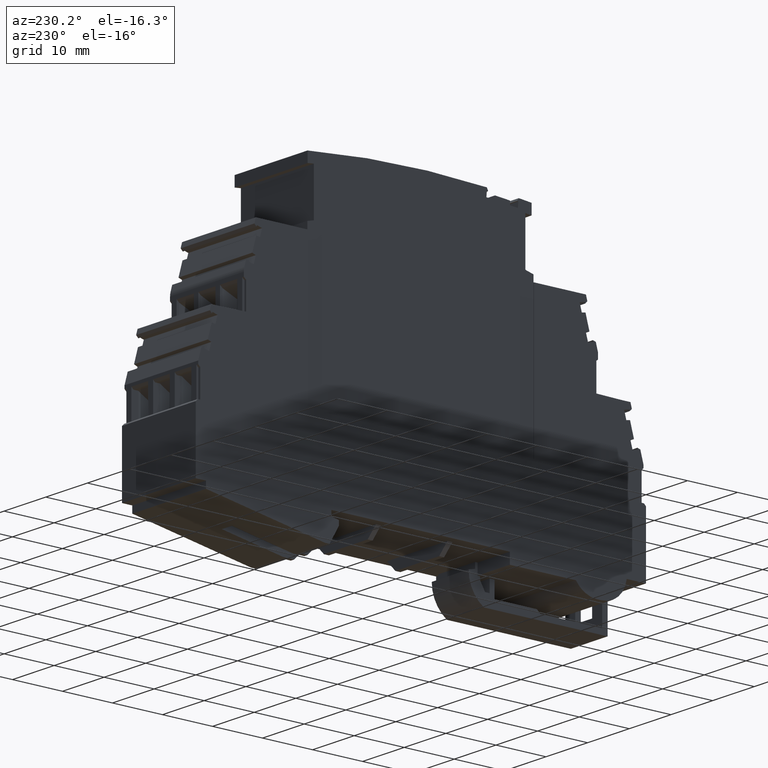
[diagram: clean part render]
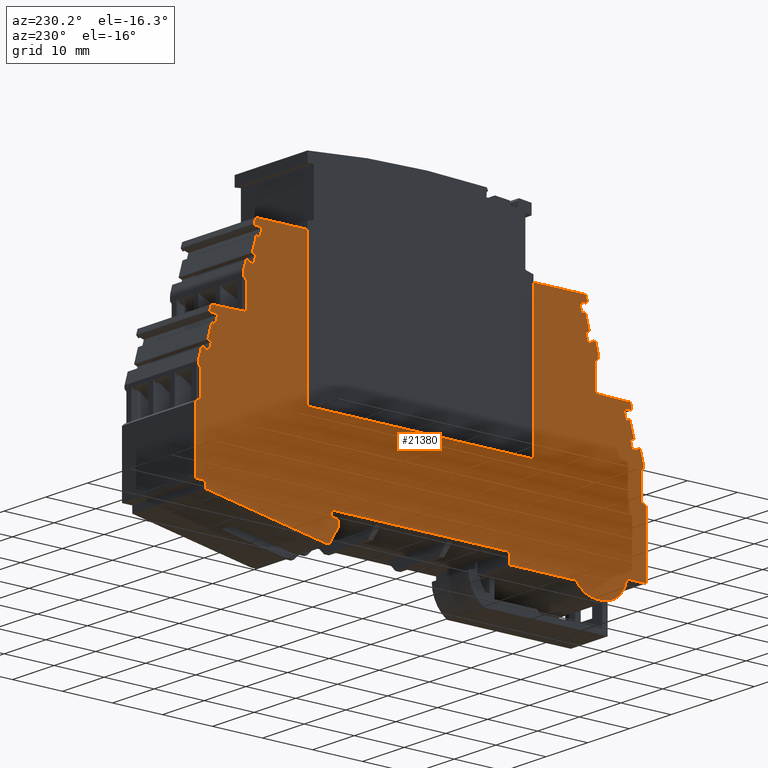
[diagram: same view with one face highlighted and labeled with its STEP entity id]
A machine part, auxiliary view. The second image highlights one B-rep face of the part: STEP entity #21380.
In plain terms, the highlighted planar face has unit normal (-1, 0, 0).
Its self-contained STEP definition (entity closure, byte-faithful):
#8360=CARTESIAN_POINT('',(104.511351260642,10.7062740524428,
-31.7595517602489));
#8370=VERTEX_POINT('',#8360);
#8450=CARTESIAN_POINT('',(100.33552798852,12.9562740524428,
-31.7595517602489));
#8460=VERTEX_POINT('',#8450);
#8490=CARTESIAN_POINT('',(104.511351260642,15.7062740524428,
-31.7595517602489));
#8500=DIRECTION('',(1.22455682824757E-16,-2.60974393670053E-32,-1.));
#8510=DIRECTION('',(-1.,-1.20996962449382E-16,-1.22455682824757E-16));
#8520=AXIS2_PLACEMENT_3D('',#8490,#8500,#8510);
#8530=CIRCLE('',#8520,5.);
#8540=EDGE_CURVE('',#8370,#8460,#8530,.T.);
#8750=CARTESIAN_POINT('',(111.241350105563,43.506269496329,
-31.7595517602489));
#8760=VERTEX_POINT('',#8750);
#8840=CARTESIAN_POINT('',(111.525986202518,42.4658263305209,
-31.7595517602489));
#8850=VERTEX_POINT('',#8840);
#8880=CARTESIAN_POINT('',(129.079958360534,-21.7,-31.7595517602489));
#8890=DIRECTION('',(0.263875685547591,-0.964556697440223,
3.2315451367867E-17));
#8900=VECTOR('',#8890,1.);
#8910=LINE('',#8880,#8900);
#8920=EDGE_CURVE('',#8760,#8850,#8910,.T.);
#9130=CARTESIAN_POINT('',(105.541351260642,10.7062740524428,
-31.7595517602489));
#9140=VERTEX_POINT('',#9130);
#9190=CARTESIAN_POINT('',(129.782702574557,10.7062740524428,
-31.7595517602489));
#9200=DIRECTION('',(1.,1.20996962449382E-16,1.22455682824757E-16));
#9210=VECTOR('',#9200,1.);
#9220=LINE('',#9190,#9210);
#9230=EDGE_CURVE('',#8370,#9140,#9220,.T.);
#9400=CARTESIAN_POINT('',(101.563282574557,39.7054127697336,
-31.7595517602489));
#9410=DIRECTION('',(0.964557418457813,0.26387304996532,
1.18115537300936E-16));
#9420=VECTOR('',#9410,1.);
#9430=LINE('',#9400,#9420);
#9440=CARTESIAN_POINT('',(109.99158318145,42.0111349015703,
-31.7595517602489));
#9450=VERTEX_POINT('',#9440);
#9460=CARTESIAN_POINT('',(111.023659619199,42.2934790650332,
-31.7595517602489));
#9470=VERTEX_POINT('',#9460);
#9480=EDGE_CURVE('',#9450,#9470,#9430,.T.);
#9780=CARTESIAN_POINT('',(117.527582533694,18.519141,-31.7595517602489))
;
#9790=DIRECTION('',(0.263873049970261,-0.964557418456461,
3.23127545131594E-17));
#9800=VECTOR('',#9790,1.);
#9810=LINE('',#9780,#9800);
#9820=CARTESIAN_POINT('',(111.095514261718,42.0308227289654,
-31.7595517602489));
#9830=VERTEX_POINT('',#9820);
#9840=EDGE_CURVE('',#9470,#9830,#9810,.T.);
#10090=CARTESIAN_POINT('',(101.563282574557,38.862590531788,
-31.7595517602489));
#10100=DIRECTION('',(-0.983885037933486,-0.178802215116658,
-1.20482314141207E-16));
#10110=VECTOR('',#10100,1.);
#10120=LINE('',#10090,#10110);
#10130=CARTESIAN_POINT('',(111.15369019086,40.6054629808583,
-31.7595517602489));
#10140=VERTEX_POINT('',#10130);
#10150=CARTESIAN_POINT('',(110.412957701656,40.4708490729602,
-31.7595517602489));
#10160=VERTEX_POINT('',#10150);
#10170=EDGE_CURVE('',#10140,#10160,#10120,.T.);
#10470=CARTESIAN_POINT('',(101.563282574557,33.8713624105116,
-31.7595517602489));
#10480=DIRECTION('',(0.937888934611864,0.346935651573346,
1.14849829901679E-16));
#10490=VECTOR('',#10480,1.);
#10500=LINE('',#10470,#10490);
#10510=CARTESIAN_POINT('',(111.239205702275,37.4505950584347,
-31.7595517602489));
#10520=VERTEX_POINT('',#10510);
#10530=CARTESIAN_POINT('',(111.945309340757,37.7117907254849,
-31.7595517602489));
#10540=VERTEX_POINT('',#10530);
#10550=EDGE_CURVE('',#10520,#10540,#10500,.T.);
#10850=CARTESIAN_POINT('',(117.527582533467,18.519141,-31.7595517602489)
);
#10860=DIRECTION('',(0.263873049960418,-0.964557418459154,
3.23127545119541E-17));
#10870=VECTOR('',#10860,1.);
#10880=LINE('',#10850,#10870);
#10890=CARTESIAN_POINT('',(112.620802017714,36.4553097293561,
-31.7595517602489));
#10900=VERTEX_POINT('',#10890);
#10910=CARTESIAN_POINT('',(112.692656660231,36.1926533932876,
-31.7595517602489));
#10920=VERTEX_POINT('',#10910);
#10930=EDGE_CURVE('',#10900,#10920,#10880,.T.);
#11230=CARTESIAN_POINT('',(101.563282574557,33.1480011745645,
-31.7595517602489));
#11240=DIRECTION('',(-0.964557418457773,-0.263873049965463,
-1.18115537300931E-16));
#11250=VECTOR('',#11240,1.);
#11260=LINE('',#11230,#11250);
#11270=CARTESIAN_POINT('',(111.660580222481,35.9103092298246,
-31.7595517602489));
#11280=VERTEX_POINT('',#11270);
#11290=EDGE_CURVE('',#10920,#11280,#11260,.T.);
#11540=CARTESIAN_POINT('',(118.077057339168,18.519141,-31.7595517602489)
);
#11550=DIRECTION('',(-0.263873049965441,0.964557418457779,
-3.23127545125693E-17));
#11560=VECTOR('',#11550,1.);
#11570=LINE('',#11540,#11560);
#11580=CARTESIAN_POINT('',(113.841351260641,34.0022747303488,
-31.7595517602489));
#11590=VERTEX_POINT('',#11580);
#11600=CARTESIAN_POINT('',(113.212761453003,36.300012078684,
-31.7595517602489));
#11610=VERTEX_POINT('',#11600);
#11620=EDGE_CURVE('',#11590,#11610,#11570,.T.);
#14070=CARTESIAN_POINT('',(110.498921229891,15.056274052443,
-31.7595517602489));
#14080=VERTEX_POINT('',#14070);
#14110=CARTESIAN_POINT('',(101.563282574557,15.056274052443,
-31.7595517602489));
#14120=DIRECTION('',(1.,1.20996962449382E-16,1.22455682824757E-16));
#14130=VECTOR('',#14120,1.);
#14140=LINE('',#14110,#14130);
#14150=CARTESIAN_POINT('',(114.341351239286,15.056274052443,
-31.7595517602489));
#14160=VERTEX_POINT('',#14150);
#14170=EDGE_CURVE('',#14080,#14160,#14140,.T.);
#14380=CARTESIAN_POINT('',(68.7413512464454,25.0562740524434,
-31.7595517602489));
#14390=DIRECTION('',(-1.22455682824757E-16,2.60974393670054E-32,1.));
#14400=DIRECTION('',(1.,1.20996962449382E-16,1.22455682824757E-16));
#14410=AXIS2_PLACEMENT_3D('',#14380,#14390,#14400);
#14420=PLANE('',#14410);
#14430=ORIENTED_EDGE('',*,*,#8920,.F.);
#14440=CARTESIAN_POINT('',(87.8287660574757,18.519141,-31.7595517602489)
);
#14450=DIRECTION('',(0.703394702810296,0.710799473873198,
8.61346786279516E-17));
#14460=VECTOR('',#14450,1.);
#14470=LINE('',#14440,#14460);
#14480=EDGE_CURVE('',#9830,#8850,#14470,.T.);
#14490=ORIENTED_EDGE('',*,*,#14480,.T.);
#14500=ORIENTED_EDGE('',*,*,#9840,.T.);
#14510=ORIENTED_EDGE('',*,*,#9480,.T.);
#14520=CARTESIAN_POINT('',(116.418265473194,18.519141,-31.7595517602489)
);
#14530=DIRECTION('',(-0.263873049965295,0.964557418457819,
-3.23127545125514E-17));
#14540=VECTOR('',#14530,1.);
#14550=LINE('',#14520,#14540);
#14560=EDGE_CURVE('',#10160,#9450,#14550,.T.);
#14570=ORIENTED_EDGE('',*,*,#14560,.T.);
#14580=ORIENTED_EDGE('',*,*,#10170,.T.);
#14590=CARTESIAN_POINT('',(117.19582416037,18.519141,-31.7595517602489))
;
#14600=DIRECTION('',(-0.263873049965391,0.964557418457793,
-3.23127545125631E-17));
#14610=VECTOR('',#14600,1.);
#14620=LINE('',#14590,#14610);
#14630=EDGE_CURVE('',#10540,#10140,#14620,.T.);
#14640=ORIENTED_EDGE('',*,*,#14630,.T.);
#14650=ORIENTED_EDGE('',*,*,#10550,.T.);
#14660=CARTESIAN_POINT('',(116.418265473194,18.519141,-31.7595517602489)
);
#14670=DIRECTION('',(-0.263873049965258,0.96455741845783,
-3.23127545125469E-17));
#14680=VECTOR('',#14670,1.);
#14690=LINE('',#14660,#14680);
#14700=EDGE_CURVE('',#11280,#10520,#14690,.T.);
#14710=ORIENTED_EDGE('',*,*,#14700,.T.);
#14720=ORIENTED_EDGE('',*,*,#11290,.T.);
#14730=ORIENTED_EDGE('',*,*,#10930,.T.);
#14740=CARTESIAN_POINT('',(101.563282574557,39.3561956506128,
-31.7595517602489));
#14750=DIRECTION('',(-0.967267752775637,0.25375794458572,
-1.18447433140509E-16));
#14760=VECTOR('',#14750,1.);
#14770=LINE('',#14740,#14760);
#14780=EDGE_CURVE('',#11610,#10900,#14770,.T.);
#14790=ORIENTED_EDGE('',*,*,#14780,.T.);
#14800=ORIENTED_EDGE('',*,*,#11620,.T.);
#14810=CARTESIAN_POINT('',(113.841351260641,18.519141,-31.7595517602489)
);
#14820=DIRECTION('',(1.20996962449382E-16,-1.,4.09142050234659E-32));
#14830=VECTOR('',#14820,1.);
#14840=LINE('',#14810,#14830);
#14850=CARTESIAN_POINT('',(113.841351260641,33.4062740524438,
-31.7595517602489));
#14860=VERTEX_POINT('',#14850);
#14870=EDGE_CURVE('',#11590,#14860,#14840,.T.);
#14880=ORIENTED_EDGE('',*,*,#14870,.F.);
#14890=CARTESIAN_POINT('',(101.563282574557,21.1282053663593,
-31.7595517602489));
#14900=DIRECTION('',(0.707106781186552,0.707106781186543,
8.6589243720215E-17));
#14910=VECTOR('',#14900,1.);
#14920=LINE('',#14890,#14910);
#14930=CARTESIAN_POINT('',(113.441351276601,33.0062740684037,
-31.7595517602489));
#14940=VERTEX_POINT('',#14930);
#14950=EDGE_CURVE('',#14940,#14860,#14920,.T.);
#14960=ORIENTED_EDGE('',*,*,#14950,.T.);
#14970=CARTESIAN_POINT('',(113.441351276601,18.519141,-31.7595517602489)
);
#14980=DIRECTION('',(1.20996962449382E-16,-1.,4.09142050234659E-32));
#14990=VECTOR('',#14980,1.);
#15000=LINE('',#14970,#14990);
#15010=CARTESIAN_POINT('',(113.441351276601,27.8062740524438,
-31.7595517602489));
#15020=VERTEX_POINT('',#15010);
#15030=EDGE_CURVE('',#14940,#15020,#15000,.T.);
#15040=ORIENTED_EDGE('',*,*,#15030,.F.);
#15050=CARTESIAN_POINT('',(101.563282574557,27.8062740524438,
-31.7595517602489));
#15060=DIRECTION('',(1.,1.20996962449382E-16,1.22455682824757E-16));
#15070=VECTOR('',#15060,1.);
#15080=LINE('',#15050,#15070);
#15090=CARTESIAN_POINT('',(113.941351260642,27.8062740524438,
-31.7595517602489));
#15100=VERTEX_POINT('',#15090);
#15110=EDGE_CURVE('',#15020,#15100,#15080,.T.);
#15120=ORIENTED_EDGE('',*,*,#15110,.F.);
#15130=CARTESIAN_POINT('',(101.563282574557,40.1843427385291,
-31.7595517602489));
#15140=DIRECTION('',(-0.707106781186552,0.707106781186543,
-8.65892437202151E-17));
#15150=VECTOR('',#15140,1.);
#15160=LINE('',#15130,#15150);
#15170=CARTESIAN_POINT('',(114.341351239286,27.4062740737997,
-31.7595517602489));
#15180=VERTEX_POINT('',#15170);
#15190=EDGE_CURVE('',#15180,#15100,#15160,.T.);
#15200=ORIENTED_EDGE('',*,*,#15190,.T.);
#15210=CARTESIAN_POINT('',(114.341351239286,18.519141,-31.7595517602489)
);
#15220=DIRECTION('',(-1.20996962449382E-16,1.,-4.09142050234659E-32));
#15230=VECTOR('',#15220,1.);
#15240=LINE('',#15210,#15230);
#15250=EDGE_CURVE('',#14160,#15180,#15240,.T.);
#15260=ORIENTED_EDGE('',*,*,#15250,.T.);
#15270=ORIENTED_EDGE('',*,*,#14170,.T.);
#15280=CARTESIAN_POINT('',(105.541351260642,15.7062740524428,
-31.7595517602489));
#15290=DIRECTION('',(1.22455682824757E-16,-2.60974393670053E-32,-1.));
#15300=DIRECTION('',(-1.,-1.20996962449382E-16,-1.22455682824757E-16));
#15310=AXIS2_PLACEMENT_3D('',#15280,#15290,#15300);
#15320=CIRCLE('',#15310,5.);
#15330=EDGE_CURVE('',#14080,#9140,#15320,.T.);
#15340=ORIENTED_EDGE('',*,*,#15330,.F.);
#15350=ORIENTED_EDGE('',*,*,#9230,.T.);
#15360=ORIENTED_EDGE('',*,*,#8540,.F.);
#15370=CARTESIAN_POINT('',(129.782702574557,12.9562740524428,
-31.7595517602489));
#15380=DIRECTION('',(1.,5.43206665043069E-17,1.22455682824757E-16));
#15390=VECTOR('',#15380,1.);
#15400=LINE('',#15370,#15390);
#15410=CARTESIAN_POINT('',(87.1413512606422,12.9562740524428,
-31.7595517602489));
#15420=VERTEX_POINT('',#15410);
#15430=EDGE_CURVE('',#15420,#8460,#15400,.T.);
#15440=ORIENTED_EDGE('',*,*,#15430,.T.);
#15450=CARTESIAN_POINT('',(87.1413512606422,-21.7,-31.7595517602489));
#15460=DIRECTION('',(-3.19601455867452E-48,-1.,2.60974393670053E-32));
#15470=VECTOR('',#15460,1.);
#15480=LINE('',#15450,#15470);
#15490=CARTESIAN_POINT('',(87.1413512606422,15.0562740524428,
-31.7595517602489));
#15500=VERTEX_POINT('',#15490);
#15510=EDGE_CURVE('',#15500,#15420,#15480,.T.);
#15520=ORIENTED_EDGE('',*,*,#15510,.T.);
#15530=CARTESIAN_POINT('',(129.782702574557,15.0562740524428,
-31.7595517602489));
#15540=DIRECTION('',(-1.,-1.20996962449382E-16,-1.22455682824757E-16));
#15550=VECTOR('',#15540,1.);
#15560=LINE('',#15530,#15550);
#15570=CARTESIAN_POINT('',(51.4413512606413,15.0562740524428,
-31.7595517602489));
#15580=VERTEX_POINT('',#15570);
#15590=EDGE_CURVE('',#15500,#15580,#15560,.T.);
#15600=ORIENTED_EDGE('',*,*,#15590,.F.);
#15610=CARTESIAN_POINT('',(51.4413512606413,-21.7,-31.7595517602489));
#15620=DIRECTION('',(-1.20996962449382E-16,1.,-3.94697575651755E-32));
#15630=VECTOR('',#15620,1.);
#15640=LINE('',#15610,#15630);
#15650=CARTESIAN_POINT('',(51.4413512606413,13.9562740524427,
-31.7595517602489));
#15660=VERTEX_POINT('',#15650);
#15670=EDGE_CURVE('',#15660,#15580,#15640,.T.);
#15680=ORIENTED_EDGE('',*,*,#15670,.T.);
#15690=CARTESIAN_POINT('',(101.563282574557,13.9562740524427,
-31.7595517602489));
#15700=DIRECTION('',(-1.,-1.20996962449382E-16,-1.22455682824757E-16));
#15710=VECTOR('',#15700,1.);
#15720=LINE('',#15690,#15710);
#15730=CARTESIAN_POINT('',(51.7413512606414,13.9562740524427,
-31.7595517602489));
#15740=VERTEX_POINT('',#15730);
#15750=EDGE_CURVE('',#15740,#15660,#15720,.T.);
#15760=ORIENTED_EDGE('',*,*,#15750,.T.);
#15770=CARTESIAN_POINT('',(101.563282574557,3.99999656791273,
-31.7595517602489));
#15780=DIRECTION('',(0.980611355912286,-0.195962671587904,
1.20081433173949E-16));
#15790=VECTOR('',#15780,1.);
#15800=LINE('',#15770,#15790);
#15810=CARTESIAN_POINT('',(52.9413512606414,13.7164693586793,
-31.7595517602489));
#15820=VERTEX_POINT('',#15810);
#15830=EDGE_CURVE('',#15740,#15820,#15800,.T.);
#15840=ORIENTED_EDGE('',*,*,#15830,.F.);
#15850=CARTESIAN_POINT('',(52.9413512606414,-21.7,-31.7595517602489));
#15860=DIRECTION('',(-1.95988511586443E-16,-1.,6.50232949757527E-34));
#15870=VECTOR('',#15860,1.);
#15880=LINE('',#15850,#15870);
#15890=CARTESIAN_POINT('',(52.9413512606414,12.7826553735047,
-31.7595517602489));
#15900=VERTEX_POINT('',#15890);
#15910=EDGE_CURVE('',#15820,#15900,#15880,.T.);
#15920=ORIENTED_EDGE('',*,*,#15910,.F.);
#15930=CARTESIAN_POINT('',(33.1849960575903,-21.7,-31.759551760249));
#15940=DIRECTION('',(-0.497124633005974,-0.867679145340417,
-6.08802090588069E-17));
#15950=VECTOR('',#15940,1.);
#15960=LINE('',#15930,#15950);
#15970=CARTESIAN_POINT('',(51.0928411993087,9.55627405244274,
-31.7595517602489));
#15980=VERTEX_POINT('',#15970);
#15990=EDGE_CURVE('',#15900,#15980,#15960,.T.);
#16000=ORIENTED_EDGE('',*,*,#15990,.F.);
#16010=CARTESIAN_POINT('',(129.782702574557,9.55627405244275,
-31.7595517602489));
#16020=DIRECTION('',(-1.,-1.20996962449382E-16,-1.22455682824757E-16));
#16030=VECTOR('',#16020,1.);
#16040=LINE('',#16010,#16030);
#16050=CARTESIAN_POINT('',(50.1482739900682,9.55627405244274,
-31.7595517602489));
#16060=VERTEX_POINT('',#16050);
#16070=EDGE_CURVE('',#15980,#16060,#16040,.T.);
#16080=ORIENTED_EDGE('',*,*,#16070,.F.);
#16090=CARTESIAN_POINT('',(129.782702574557,-4.48542430030398,
-31.7595517602489));
#16100=DIRECTION('',(-0.984807753012208,0.17364817766693,
-1.2060416625019E-16));
#16110=VECTOR('',#16100,1.);
#16120=LINE('',#16090,#16110);
#16130=CARTESIAN_POINT('',(26.3913512606413,13.7452605082469,
-31.759551760249));
#16140=VERTEX_POINT('',#16130);
#16150=EDGE_CURVE('',#16060,#16140,#16120,.T.);
#16160=ORIENTED_EDGE('',*,*,#16150,.F.);
#16170=CARTESIAN_POINT('',(26.3913512606413,9.06039299999994,
-31.759551760249));
#16180=DIRECTION('',(2.41993924898765E-16,-1.,5.57309706799265E-32));
#16190=VECTOR('',#16180,1.);
#16200=LINE('',#16170,#16190);
#16210=CARTESIAN_POINT('',(26.3913512606413,15.056274052443,
-31.759551760249));
#16220=VERTEX_POINT('',#16210);
#16230=EDGE_CURVE('',#16220,#16140,#16200,.T.);
#16240=ORIENTED_EDGE('',*,*,#16230,.T.);
#16250=CARTESIAN_POINT('',(101.563282574557,15.056274052443,
-31.7595517602489));
#16260=DIRECTION('',(1.,1.20996962449382E-16,1.22455682824757E-16));
#16270=VECTOR('',#16260,1.);
#16280=LINE('',#16250,#16270);
#16290=CARTESIAN_POINT('',(24.3413513139145,15.056274052443,
-31.759551760249));
#16300=VERTEX_POINT('',#16290);
#16310=EDGE_CURVE('',#16300,#16220,#16280,.T.);
#16320=ORIENTED_EDGE('',*,*,#16310,.T.);
#16330=CARTESIAN_POINT('',(24.3413513139145,18.519141,-31.759551760249))
;
#16340=DIRECTION('',(1.20996962449382E-16,-1.,4.09142050234659E-32));
#16350=VECTOR('',#16340,1.);
#16360=LINE('',#16330,#16350);
#16370=CARTESIAN_POINT('',(24.3413513139145,27.4062741057177,
-31.759551760249));
#16380=VERTEX_POINT('',#16370);
#16390=EDGE_CURVE('',#16380,#16300,#16360,.T.);
#16400=ORIENTED_EDGE('',*,*,#16390,.T.);
#16410=CARTESIAN_POINT('',(101.563282574557,104.628205366359,
-31.7595517602489));
#16420=DIRECTION('',(-0.707106781186552,-0.707106781186543,
-8.6589243720215E-17));
#16430=VECTOR('',#16420,1.);
#16440=LINE('',#16410,#16430);
#16450=CARTESIAN_POINT('',(24.7413512606405,27.8062740524438,
-31.759551760249));
#16460=VERTEX_POINT('',#16450);
#16470=EDGE_CURVE('',#16460,#16380,#16440,.T.);
#16480=ORIENTED_EDGE('',*,*,#16470,.T.);
#16490=CARTESIAN_POINT('',(129.782702574557,27.8062740524438,
-31.7595517602489));
#16500=DIRECTION('',(1.,1.20996962449382E-16,1.22455682824757E-16));
#16510=VECTOR('',#16500,1.);
#16520=LINE('',#16490,#16510);
#16530=CARTESIAN_POINT('',(25.2413512765996,27.8062740524438,
-31.759551760249));
#16540=VERTEX_POINT('',#16530);
#16550=EDGE_CURVE('',#16460,#16540,#16520,.T.);
#16560=ORIENTED_EDGE('',*,*,#16550,.F.);
#16570=CARTESIAN_POINT('',(25.2413512765996,-21.7,-31.759551760249));
#16580=DIRECTION('',(-2.46519032881566E-32,-1.,1.44553607884872E-33));
#16590=VECTOR('',#16580,1.);
#16600=LINE('',#16570,#16590);
#16610=CARTESIAN_POINT('',(25.2413512765996,33.0062740684037,
-31.759551760249));
#16620=VERTEX_POINT('',#16610);
#16630=EDGE_CURVE('',#16620,#16540,#16600,.T.);
#16640=ORIENTED_EDGE('',*,*,#16630,.T.);
#16650=CARTESIAN_POINT('',(8.89999997864405,49.347625366359,
-31.759551760249));
#16660=DIRECTION('',(0.707106781186552,-0.707106781186543,
3.10780924889573E-17));
#16670=VECTOR('',#16660,1.);
#16680=LINE('',#16650,#16670);
#16690=CARTESIAN_POINT('',(24.8413512606413,33.4062740684029,
-31.759551760249));
#16700=VERTEX_POINT('',#16690);
#16710=EDGE_CURVE('',#16700,#16620,#16680,.T.);
#16720=ORIENTED_EDGE('',*,*,#16710,.T.);
#16730=CARTESIAN_POINT('',(24.8413512606413,18.519141,-31.759551760249))
;
#16740=DIRECTION('',(-1.20996962449382E-16,1.,-4.09142050234659E-32));
#16750=VECTOR('',#16740,1.);
#16760=LINE('',#16730,#16750);
#16770=CARTESIAN_POINT('',(24.8413512606413,34.0022747303481,
-31.759551760249));
#16780=VERTEX_POINT('',#16770);
#16790=EDGE_CURVE('',#16700,#16780,#16760,.T.);
#16800=ORIENTED_EDGE('',*,*,#16790,.F.);
#16810=CARTESIAN_POINT('',(20.6056451821145,18.519141,-31.759551760249))
;
#16820=DIRECTION('',(-0.263873049965441,-0.964557418457779,
-3.23127545125692E-17));
#16830=VECTOR('',#16820,1.);
#16840=LINE('',#16810,#16830);
#16850=CARTESIAN_POINT('',(25.4699410682801,36.3000120786842,
-31.759551760249));
#16860=VERTEX_POINT('',#16850);
#16870=EDGE_CURVE('',#16860,#16780,#16840,.T.);
#16880=ORIENTED_EDGE('',*,*,#16870,.T.);
#16890=CARTESIAN_POINT('',(101.563282574557,56.2627265203502,
-31.7595517602489));
#16900=DIRECTION('',(-0.967267752775637,-0.25375794458572,
-1.18447433140509E-16));
#16910=VECTOR('',#16900,1.);
#16920=LINE('',#16890,#16910);
#16930=CARTESIAN_POINT('',(26.0619005035683,36.4553097293563,
-31.759551760249));
#16940=VERTEX_POINT('',#16930);
#16950=EDGE_CURVE('',#16940,#16860,#16920,.T.);
#16960=ORIENTED_EDGE('',*,*,#16950,.T.);
#16970=CARTESIAN_POINT('',(21.1551199878159,18.519141,-31.759551760249))
;
#16980=DIRECTION('',(0.263873049960418,0.964557418459154,
3.23127545119541E-17));
#16990=VECTOR('',#16980,1.);
#17000=LINE('',#16970,#16990);
#17010=CARTESIAN_POINT('',(25.990045861052,36.1926533932877,
-31.759551760249));
#17020=VERTEX_POINT('',#17010);
#17030=EDGE_CURVE('',#17020,#16940,#17000,.T.);
#17040=ORIENTED_EDGE('',*,*,#17030,.T.);
#17050=CARTESIAN_POINT('',(101.563282574557,15.5181553429392,
-31.7595517602489));
#17060=DIRECTION('',(-0.964557418457773,0.263873049965463,
-1.18115537300931E-16));
#17070=VECTOR('',#17060,1.);
#17080=LINE('',#17050,#17070);
#17090=CARTESIAN_POINT('',(27.022122298802,35.9103092298245,
-31.759551760249));
#17100=VERTEX_POINT('',#17090);
#17110=EDGE_CURVE('',#17100,#17020,#17080,.T.);
#17120=ORIENTED_EDGE('',*,*,#17110,.T.);
#17130=CARTESIAN_POINT('',(22.264437048089,18.519141,-31.759551760249));
#17140=DIRECTION('',(-0.263873049965258,-0.96455741845783,
-3.23127545125468E-17));
#17150=VECTOR('',#17140,1.);
#17160=LINE('',#17130,#17150);
#17170=CARTESIAN_POINT('',(27.4434968190078,37.4505950584344,
-31.759551760249));
#17180=VERTEX_POINT('',#17170);
#17190=EDGE_CURVE('',#17180,#17100,#17160,.T.);
#17200=ORIENTED_EDGE('',*,*,#17190,.T.);
#17210=CARTESIAN_POINT('',(101.563282574557,10.0328537709548,
-31.7595517602489));
#17220=DIRECTION('',(0.937888934611864,-0.346935651573346,
1.14849829901679E-16));
#17230=VECTOR('',#17220,1.);
#17240=LINE('',#17210,#17230);
#17250=CARTESIAN_POINT('',(26.7373931805261,37.7117907254846,
-31.759551760249));
#17260=VERTEX_POINT('',#17250);
#17270=EDGE_CURVE('',#17260,#17180,#17240,.T.);
#17280=ORIENTED_EDGE('',*,*,#17270,.T.);
#17290=CARTESIAN_POINT('',(21.4868783609122,18.519141,-31.759551760249))
;
#17300=DIRECTION('',(-0.263873049965391,-0.964557418457793,
-3.23127545125631E-17));
#17310=VECTOR('',#17300,1.);
#17320=LINE('',#17290,#17310);
#17330=CARTESIAN_POINT('',(27.5290123304223,40.6054629808583,
-31.759551760249));
#17340=VERTEX_POINT('',#17330);
#17350=EDGE_CURVE('',#17340,#17260,#17320,.T.);
#17360=ORIENTED_EDGE('',*,*,#17350,.T.);
#17370=CARTESIAN_POINT('',(101.563282574557,27.1511558170864,
-31.7595517602489));
#17380=DIRECTION('',(-0.983885037933486,0.178802215116658,
-1.20482314141207E-16));
#17390=VECTOR('',#17380,1.);
#17400=LINE('',#17370,#17390);
#17410=CARTESIAN_POINT('',(28.2697448196271,40.4708490729602,
-31.759551760249));
#17420=VERTEX_POINT('',#17410);
#17430=EDGE_CURVE('',#17420,#17340,#17400,.T.);
#17440=ORIENTED_EDGE('',*,*,#17430,.T.);
#17450=CARTESIAN_POINT('',(22.2644370480887,18.519141,-31.759551760249))
;
#17460=DIRECTION('',(-0.263873049965295,-0.964557418457819,
-3.23127545125513E-17));
#17470=VECTOR('',#17460,1.);
#17480=LINE('',#17450,#17470);
#17490=CARTESIAN_POINT('',(28.6911193398329,42.0111349015703,
-31.759551760249));
#17500=VERTEX_POINT('',#17490);
#17510=EDGE_CURVE('',#17500,#17420,#17480,.T.);
#17520=ORIENTED_EDGE('',*,*,#17510,.T.);
#17530=CARTESIAN_POINT('',(101.563282574557,22.0755669381186,
-31.7595517602489));
#17540=DIRECTION('',(0.964557418457813,-0.26387304996532,
1.18115537300936E-16));
#17550=VECTOR('',#17540,1.);
#17560=LINE('',#17530,#17550);
#17570=CARTESIAN_POINT('',(27.6590429020832,42.2934790650332,
-31.759551760249));
#17580=VERTEX_POINT('',#17570);
#17590=EDGE_CURVE('',#17580,#17500,#17560,.T.);
#17600=ORIENTED_EDGE('',*,*,#17590,.T.);
#17610=CARTESIAN_POINT('',(21.155119987589,18.519141,-31.759551760249));
#17620=DIRECTION('',(0.26387304997026,0.964557418456461,
3.23127545131593E-17));
#17630=VECTOR('',#17620,1.);
#17640=LINE('',#17610,#17630);
#17650=CARTESIAN_POINT('',(27.5871882595643,42.0308227289655,
-31.759551760249));
#17660=VERTEX_POINT('',#17650);
#17670=EDGE_CURVE('',#17660,#17580,#17640,.T.);
#17680=ORIENTED_EDGE('',*,*,#17670,.T.);
#17690=CARTESIAN_POINT('',(50.853936463807,18.519141,-31.7595517602489))
;
#17700=DIRECTION('',(0.703394702810296,-0.710799473873198,
8.61346786279516E-17));
#17710=VECTOR('',#17700,1.);
#17720=LINE('',#17690,#17710);
#17730=CARTESIAN_POINT('',(27.156716305533,42.4658263438921,
-31.759551760249));
#17740=VERTEX_POINT('',#17730);
#17750=EDGE_CURVE('',#17740,#17660,#17720,.T.);
#17760=ORIENTED_EDGE('',*,*,#17750,.T.);
#17770=CARTESIAN_POINT('',(9.60273927867974,-21.7,-31.759551760249));
#17780=DIRECTION('',(-0.263875753589783,-0.964556678825783,
-3.23154597006323E-17));
#17790=VECTOR('',#17780,1.);
#17800=LINE('',#17770,#17790);
#17810=CARTESIAN_POINT('',(27.4413524755615,43.5062694884454,
-31.759551760249));
#17820=VERTEX_POINT('',#17810);
#17830=EDGE_CURVE('',#17820,#17740,#17800,.T.);
#17840=ORIENTED_EDGE('',*,*,#17830,.T.);
#17850=CARTESIAN_POINT('',(129.782702574557,43.5062694884454,
-31.7595517602489));
#17860=DIRECTION('',(1.,1.18859577327523E-16,1.22455682824757E-16));
#17870=VECTOR('',#17860,1.);
#17880=LINE('',#17850,#17870);
#17890=CARTESIAN_POINT('',(29.3413508774288,43.5062694884454,
-31.759551760249));
#17900=VERTEX_POINT('',#17890);
#17910=EDGE_CURVE('',#17820,#17900,#17880,.T.);
#17920=ORIENTED_EDGE('',*,*,#17910,.F.);
#17930=CARTESIAN_POINT('',(129.782702574557,45.4899600439842,
-31.7595517602489));
#17940=DIRECTION('',(0.999805030924262,0.019745889155346,
1.22440803089282E-16));
#17950=VECTOR('',#17940,1.);
#17960=LINE('',#17930,#17950);
#17970=CARTESIAN_POINT('',(34.4047083371115,43.6062694805042,
-31.759551760249));
#17980=VERTEX_POINT('',#17970);
#17990=EDGE_CURVE('',#17900,#17980,#17960,.T.);
#18000=ORIENTED_EDGE('',*,*,#17990,.F.);
#18010=CARTESIAN_POINT('',(34.4047083371115,-21.7093639929982,
-31.759551760249));
#18020=DIRECTION('',(-2.46519032881566E-32,-1.,2.60974393670053E-32));
#18030=VECTOR('',#18020,1.);
#18040=LINE('',#18010,#18030);
#18050=CARTESIAN_POINT('',(34.4047083371115,48.6969054875637,
-31.759551760249));
#18060=VERTEX_POINT('',#18050);
#18070=EDGE_CURVE('',#18060,#17980,#18040,.T.);
#18080=ORIENTED_EDGE('',*,*,#18070,.T.);
#18090=CARTESIAN_POINT('',(8.89999994672604,70.7144821659877,
-31.759551760249));
#18100=DIRECTION('',(0.756958310160381,-0.653463171631838,
9.42711989367665E-18));
#18110=VECTOR('',#18100,1.);
#18120=LINE('',#18090,#18110);
#18130=CARTESIAN_POINT('',(33.9413512606414,49.0969100594456,
-31.759551760249));
#18140=VERTEX_POINT('',#18130);
#18150=EDGE_CURVE('',#18140,#18060,#18120,.T.);
#18160=ORIENTED_EDGE('',*,*,#18150,.T.);
#18170=CARTESIAN_POINT('',(8.89999994672604,49.0969100594456,
-31.759551760249));
#18180=DIRECTION('',(-1.,2.46519032881566E-32,-1.22455682824757E-16));
#18190=VECTOR('',#18180,1.);
#18200=LINE('',#18170,#18190);
#18210=CARTESIAN_POINT('',(33.9521931613098,49.0969100594456,
-31.7595517602489));
#18220=VERTEX_POINT('',#18210);
#18230=EDGE_CURVE('',#18220,#18140,#18200,.T.);
#18240=ORIENTED_EDGE('',*,*,#18230,.T.);
#18250=CARTESIAN_POINT('',(101.563282574557,-9.26938647477359,
-31.7595517602489));
#18260=DIRECTION('',(-0.756961995471646,0.65345890261866,
-9.26942980278708E-17));
#18270=VECTOR('',#18260,1.);
#18280=LINE('',#18250,#18270);
#18290=CARTESIAN_POINT('',(33.9413512606414,49.1062694943387,
-31.7595517602489));
#18300=VERTEX_POINT('',#18290);
#18310=EDGE_CURVE('',#18220,#18300,#18280,.T.);
#18320=ORIENTED_EDGE('',*,*,#18310,.F.);
#18330=CARTESIAN_POINT('',(33.9413512606414,18.519141,-31.759551760249))
;
#18340=DIRECTION('',(-1.20996962449382E-16,1.,-4.09142050234659E-32));
#18350=VECTOR('',#18340,1.);
#18360=LINE('',#18330,#18350);
#18370=CARTESIAN_POINT('',(33.9413512606414,49.8804012255559,
-31.759551760249));
#18380=VERTEX_POINT('',#18370);
#18390=EDGE_CURVE('',#18300,#18380,#18360,.T.);
#18400=ORIENTED_EDGE('',*,*,#18390,.F.);
#18410=CARTESIAN_POINT('',(36.9413512606414,49.8804012255559,
-31.759551760249));
#18420=DIRECTION('',(1.22455682824757E-16,-2.60974393670053E-32,-1.));
#18430=DIRECTION('',(-1.,-1.20996962449382E-16,-1.22455682824757E-16));
#18440=AXIS2_PLACEMENT_3D('',#18410,#18420,#18430);
#18450=CIRCLE('',#18440,3.);
#18460=CARTESIAN_POINT('',(34.047679005268,50.6720203754521,
-31.759551760249));
#18470=VERTEX_POINT('',#18460);
#18480=EDGE_CURVE('',#18380,#18470,#18450,.T.);
#18490=ORIENTED_EDGE('',*,*,#18480,.F.);
#18500=CARTESIAN_POINT('',(25.2516465621845,18.519141,-31.759551760249))
;
#18510=DIRECTION('',(-0.263873049965441,-0.964557418457779,
-3.23127545125692E-17));
#18520=VECTOR('',#18510,1.);
#18530=LINE('',#18500,#18520);
#18540=CARTESIAN_POINT('',(34.3699410682801,51.8500120786841,
-31.759551760249));
#18550=VERTEX_POINT('',#18540);
#18560=EDGE_CURVE('',#18550,#18470,#18530,.T.);
#18570=ORIENTED_EDGE('',*,*,#18560,.T.);
#18580=CARTESIAN_POINT('',(101.563282574557,69.4778552291983,
-31.7595517602489));
#18590=DIRECTION('',(-0.967267752775637,-0.25375794458572,
-1.18447433140509E-16));
#18600=VECTOR('',#18590,1.);
#18610=LINE('',#18580,#18600);
#18620=CARTESIAN_POINT('',(34.9619005035683,52.0053097293563,
-31.759551760249));
#18630=VERTEX_POINT('',#18620);
#18640=EDGE_CURVE('',#18630,#18550,#18610,.T.);
#18650=ORIENTED_EDGE('',*,*,#18640,.T.);
#18660=CARTESIAN_POINT('',(25.801121367973,18.519141,-31.759551760249));
#18670=DIRECTION('',(0.263873049960418,0.964557418459154,
3.23127545119541E-17));
#18680=VECTOR('',#18670,1.);
#18690=LINE('',#18660,#18680);
#18700=CARTESIAN_POINT('',(34.8900458610521,51.7426533932876,
-31.759551760249));
#18710=VERTEX_POINT('',#18700);
#18720=EDGE_CURVE('',#18710,#18630,#18690,.T.);
#18730=ORIENTED_EDGE('',*,*,#18720,.T.);
#18740=CARTESIAN_POINT('',(101.563282574557,33.502919826372,
-31.7595517602489));
#18750=DIRECTION('',(-0.964557418457773,0.263873049965463,
-1.18115537300931E-16));
#18760=VECTOR('',#18750,1.);
#18770=LINE('',#18740,#18760);
#18780=CARTESIAN_POINT('',(35.9221222988021,51.4603092298246,
-31.759551760249));
#18790=VERTEX_POINT('',#18780);
#18800=EDGE_CURVE('',#18790,#18710,#18770,.T.);
#18810=ORIENTED_EDGE('',*,*,#18800,.T.);
#18820=CARTESIAN_POINT('',(26.9104384281622,18.519141,-31.759551760249))
;
#18830=DIRECTION('',(-0.263873049965258,-0.96455741845783,
-3.23127545125468E-17));
#18840=VECTOR('',#18830,1.);
#18850=LINE('',#18820,#18840);
#18860=CARTESIAN_POINT('',(36.3434968190078,53.0005950584347,
-31.759551760249));
#18870=VERTEX_POINT('',#18860);
#18880=EDGE_CURVE('',#18870,#18790,#18850,.T.);
#18890=ORIENTED_EDGE('',*,*,#18880,.T.);
#18900=CARTESIAN_POINT('',(101.563282574557,28.8750637385248,
-31.7595517602489));
#18910=DIRECTION('',(0.937888934611864,-0.346935651573346,
1.14849829901679E-16));
#18920=VECTOR('',#18910,1.);
#18930=LINE('',#18900,#18920);
#18940=CARTESIAN_POINT('',(35.6373931805261,53.2617907254849,
-31.759551760249));
#18950=VERTEX_POINT('',#18940);
#18960=EDGE_CURVE('',#18950,#18870,#18930,.T.);
#18970=ORIENTED_EDGE('',*,*,#18960,.T.);
#18980=CARTESIAN_POINT('',(26.1328797409831,18.519141,-31.759551760249))
;
#18990=DIRECTION('',(-0.263873049965391,-0.964557418457793,
-3.23127545125631E-17));
#19000=VECTOR('',#18990,1.);
#19010=LINE('',#18980,#19000);
#19020=CARTESIAN_POINT('',(36.4290123304222,56.1554629808583,
-31.759551760249));
#19030=VERTEX_POINT('',#19020);
#19040=EDGE_CURVE('',#19030,#18950,#19010,.T.);
#19050=ORIENTED_EDGE('',*,*,#19040,.T.);
#19060=CARTESIAN_POINT('',(101.563282574557,44.3185599376741,
-31.7595517602489));
#19070=DIRECTION('',(-0.983885037933486,0.178802215116658,
-1.20482314141207E-16));
#19080=VECTOR('',#19070,1.);
#19090=LINE('',#19060,#19080);
#19100=CARTESIAN_POINT('',(37.1697448196271,56.0208490729602,
-31.759551760249));
#19110=VERTEX_POINT('',#19100);
#19120=EDGE_CURVE('',#19110,#19030,#19090,.T.);
#19130=ORIENTED_EDGE('',*,*,#19120,.T.);
#19140=CARTESIAN_POINT('',(26.9104384281613,18.519141,-31.759551760249))
;
#19150=DIRECTION('',(-0.263873049965295,-0.964557418457819,
-3.23127545125513E-17));
#19160=VECTOR('',#19150,1.);
#19170=LINE('',#19140,#19160);
#19180=CARTESIAN_POINT('',(37.5911193398329,57.5611349015704,
-31.759551760249));
#19190=VERTEX_POINT('',#19180);
#19200=EDGE_CURVE('',#19190,#19110,#19170,.T.);
#19210=ORIENTED_EDGE('',*,*,#19200,.T.);
#19220=CARTESIAN_POINT('',(101.563282574557,40.06033142155,
-31.7595517602489));
#19230=DIRECTION('',(0.964557418457813,-0.26387304996532,
1.18115537300936E-16));
#19240=VECTOR('',#19230,1.);
#19250=LINE('',#19220,#19240);
#19260=CARTESIAN_POINT('',(36.5590429020832,57.8434790650332,
-31.759551760249));
#19270=VERTEX_POINT('',#19260);
#19280=EDGE_CURVE('',#19270,#19190,#19250,.T.);
#19290=ORIENTED_EDGE('',*,*,#19280,.T.);
#19300=CARTESIAN_POINT('',(25.8011213675756,18.519141,-31.759551760249))
;
#19310=DIRECTION('',(0.26387304997026,0.964557418456461,
3.23127545131593E-17));
#19320=VECTOR('',#19310,1.);
#19330=LINE('',#19300,#19320);
#19340=CARTESIAN_POINT('',(36.4871882595643,57.5808227289654,
-31.759551760249));
#19350=VERTEX_POINT('',#19340);
#19360=EDGE_CURVE('',#19350,#19270,#19330,.T.);
#19370=ORIENTED_EDGE('',*,*,#19360,.T.);
#19380=CARTESIAN_POINT('',(75.1419439550046,18.519141,-31.7595517602489)
);
#19390=DIRECTION('',(0.703394702810296,-0.710799473873198,
8.61346786279516E-17));
#19400=VECTOR('',#19390,1.);
#19410=LINE('',#19380,#19400);
#19420=CARTESIAN_POINT('',(36.0567168312905,58.0158258125996,
-31.759551760249));
#19430=VERTEX_POINT('',#19420);
#19440=EDGE_CURVE('',#19430,#19350,#19410,.T.);
#19450=ORIENTED_EDGE('',*,*,#19440,.T.);
#19460=CARTESIAN_POINT('',(25.2516465621875,18.519141,-31.759551760249))
;
#19470=DIRECTION('',(-0.26387304996536,-0.964557418457802,
-3.23127545125592E-17));
#19480=VECTOR('',#19470,1.);
#19490=LINE('',#19460,#19480);
#19500=CARTESIAN_POINT('',(36.3413512606413,59.0562740524438,
-31.759551760249));
#19510=VERTEX_POINT('',#19500);
#19520=EDGE_CURVE('',#19510,#19430,#19490,.T.);
#19530=ORIENTED_EDGE('',*,*,#19520,.T.);
#19540=CARTESIAN_POINT('',(138.682702553201,59.0562740524438,
-31.7595517602489));
#19550=DIRECTION('',(-1.,-1.20996962449382E-16,-1.22455682824757E-16));
#19560=VECTOR('',#19550,1.);
#19570=LINE('',#19540,#19560);
#19580=CARTESIAN_POINT('',(46.7413513139153,59.0562740524438,
-31.7595517602489));
#19590=VERTEX_POINT('',#19580);
#19600=EDGE_CURVE('',#19590,#19510,#19570,.T.);
#19610=ORIENTED_EDGE('',*,*,#19600,.T.);
#19620=CARTESIAN_POINT('',(46.7413513139153,-15.7,-31.7595517602489));
#19630=DIRECTION('',(-2.27780756759429E-48,1.,-2.60974393670053E-32));
#19640=VECTOR('',#19630,1.);
#19650=LINE('',#19620,#19640);
#19660=CARTESIAN_POINT('',(46.7413513139153,30.7879289771841,
-31.7595517602489));
#19670=VERTEX_POINT('',#19660);
#19680=EDGE_CURVE('',#19670,#19590,#19650,.T.);
#19690=ORIENTED_EDGE('',*,*,#19680,.T.);
#19700=CARTESIAN_POINT('',(129.782702627831,30.7879289771841,
-31.7595517602489));
#19710=DIRECTION('',(-1.,3.95149615359835E-16,-1.22455682824757E-16));
#19720=VECTOR('',#19710,1.);
#19730=LINE('',#19700,#19720);
#19740=CARTESIAN_POINT('',(91.9413513139153,30.7879289771841,
-31.7595517602489));
#19750=VERTEX_POINT('',#19740);
#19760=EDGE_CURVE('',#19750,#19670,#19730,.T.);
#19770=ORIENTED_EDGE('',*,*,#19760,.T.);
#19780=CARTESIAN_POINT('',(91.9413513139153,-15.7,-31.7595517602489));
#19790=DIRECTION('',(-2.27780756759429E-48,1.,-2.60974393670053E-32));
#19800=VECTOR('',#19790,1.);
#19810=LINE('',#19780,#19800);
#19820=CARTESIAN_POINT('',(91.9413513139153,59.0562740524438,
-31.7595517602489));
#19830=VERTEX_POINT('',#19820);
#19840=EDGE_CURVE('',#19750,#19830,#19810,.T.);
#19850=ORIENTED_EDGE('',*,*,#19840,.F.);
#19860=CARTESIAN_POINT('',(138.682702553201,59.0562740524438,
-31.7595517602489));
#19870=DIRECTION('',(-1.,-1.20996962449382E-16,-1.22455682824757E-16));
#19880=VECTOR('',#19870,1.);
#19890=LINE('',#19860,#19880);
#19900=CARTESIAN_POINT('',(102.341351260641,59.0562740524438,
-31.7595517602489));
#19910=VERTEX_POINT('',#19900);
#19920=EDGE_CURVE('',#19910,#19830,#19890,.T.);
#19930=ORIENTED_EDGE('',*,*,#19920,.T.);
#19940=CARTESIAN_POINT('',(113.431055959095,18.519141,-31.7595517602489)
);
#19950=DIRECTION('',(-0.26387304996536,0.964557418457802,
-3.23127545125593E-17));
#19960=VECTOR('',#19950,1.);
#19970=LINE('',#19940,#19960);
#19980=CARTESIAN_POINT('',(102.625985689992,58.0158258125997,
-31.7595517602489));
#19990=VERTEX_POINT('',#19980);
#20000=EDGE_CURVE('',#19990,#19910,#19970,.T.);
#20010=ORIENTED_EDGE('',*,*,#20000,.T.);
#20020=CARTESIAN_POINT('',(63.540758566278,18.519141,-31.7595517602489))
;
#20030=DIRECTION('',(0.703394702810296,0.710799473873198,
8.61346786279516E-17));
#20040=VECTOR('',#20030,1.);
#20050=LINE('',#20020,#20040);
#20060=CARTESIAN_POINT('',(102.195514261718,57.5808227289656,
-31.7595517602489));
#20070=VERTEX_POINT('',#20060);
#20080=EDGE_CURVE('',#20070,#19990,#20050,.T.);
#20090=ORIENTED_EDGE('',*,*,#20080,.T.);
#20100=CARTESIAN_POINT('',(112.881581153707,18.519141,-31.7595517602489)
);
#20110=DIRECTION('',(0.263873049970261,-0.964557418456461,
3.23127545131594E-17));
#20120=VECTOR('',#20110,1.);
#20130=LINE('',#20100,#20120);
#20140=CARTESIAN_POINT('',(102.123659619199,57.843479065034,
-31.7595517602489));
#20150=VERTEX_POINT('',#20140);
#20160=EDGE_CURVE('',#20150,#20070,#20130,.T.);
#20170=ORIENTED_EDGE('',*,*,#20160,.T.);
#20180=CARTESIAN_POINT('',(101.563282574557,57.690177253165,
-31.7595517602489));
#20190=DIRECTION('',(0.964557418457813,0.26387304996532,
1.18115537300936E-16));
#20200=VECTOR('',#20190,1.);
#20210=LINE('',#20180,#20200);
#20220=CARTESIAN_POINT('',(101.09158318145,57.5611349015703,
-31.7595517602489));
#20230=VERTEX_POINT('',#20220);
#20240=EDGE_CURVE('',#20230,#20150,#20210,.T.);
#20250=ORIENTED_EDGE('',*,*,#20240,.T.);
#20260=CARTESIAN_POINT('',(111.772264093121,18.519141,-31.7595517602489)
);
#20270=DIRECTION('',(-0.263873049965295,0.964557418457819,
-3.23127545125514E-17));
#20280=VECTOR('',#20270,1.);
#20290=LINE('',#20260,#20280);
#20300=CARTESIAN_POINT('',(101.512957701655,56.0208490729602,
-31.7595517602489));
#20310=VERTEX_POINT('',#20300);
#20320=EDGE_CURVE('',#20310,#20230,#20290,.T.);
#20330=ORIENTED_EDGE('',*,*,#20320,.T.);
#20340=CARTESIAN_POINT('',(101.563282574557,56.0299946523757,
-31.7595517602489));
#20350=DIRECTION('',(-0.983885037933486,-0.178802215116658,
-1.20482314141207E-16));
#20360=VECTOR('',#20350,1.);
#20370=LINE('',#20340,#20360);
#20380=CARTESIAN_POINT('',(102.25369019086,56.1554629808583,
-31.7595517602489));
#20390=VERTEX_POINT('',#20380);
#20400=EDGE_CURVE('',#20390,#20310,#20370,.T.);
#20410=ORIENTED_EDGE('',*,*,#20400,.T.);
#20420=CARTESIAN_POINT('',(112.5498227803,18.519141,-31.7595517602489));
#20430=DIRECTION('',(-0.263873049965391,0.964557418457793,
-3.23127545125631E-17));
#20440=VECTOR('',#20430,1.);
#20450=LINE('',#20420,#20440);
#20460=CARTESIAN_POINT('',(103.045309340756,53.2617907254849,
-31.7595517602489));
#20470=VERTEX_POINT('',#20460);
#20480=EDGE_CURVE('',#20470,#20390,#20450,.T.);
#20490=ORIENTED_EDGE('',*,*,#20480,.T.);
#20500=CARTESIAN_POINT('',(101.563282574557,52.7135723780816,
-31.7595517602489));
#20510=DIRECTION('',(0.937888934611864,0.346935651573346,
1.14849829901679E-16));
#20520=VECTOR('',#20510,1.);
#20530=LINE('',#20500,#20520);
#20540=CARTESIAN_POINT('',(102.339205702275,53.0005950584346,
-31.7595517602489));
#20550=VERTEX_POINT('',#20540);
#20560=EDGE_CURVE('',#20550,#20470,#20530,.T.);
#20570=ORIENTED_EDGE('',*,*,#20560,.T.);
#20580=CARTESIAN_POINT('',(111.77226409312,18.519141,-31.7595517602489))
;
#20590=DIRECTION('',(-0.263873049965258,0.96455741845783,
-3.23127545125469E-17));
#20600=VECTOR('',#20590,1.);
#20610=LINE('',#20580,#20600);
#20620=CARTESIAN_POINT('',(102.760580222481,51.4603092298246,
-31.7595517602489));
#20630=VERTEX_POINT('',#20620);
#20640=EDGE_CURVE('',#20630,#20550,#20610,.T.);
#20650=ORIENTED_EDGE('',*,*,#20640,.T.);
#20660=CARTESIAN_POINT('',(101.563282574557,51.1327656579973,
-31.7595517602489));
#20670=DIRECTION('',(-0.964557418457773,-0.263873049965463,
-1.18115537300931E-16));
#20680=VECTOR('',#20670,1.);
#20690=LINE('',#20660,#20680);
#20700=CARTESIAN_POINT('',(103.792656660231,51.7426533932876,
-31.7595517602489));
#20710=VERTEX_POINT('',#20700);
#20720=EDGE_CURVE('',#20710,#20630,#20690,.T.);
#20730=ORIENTED_EDGE('',*,*,#20720,.T.);
#20740=CARTESIAN_POINT('',(112.88158115331,18.519141,-31.7595517602489))
;
#20750=DIRECTION('',(0.263873049960418,-0.964557418459154,
3.23127545119541E-17));
#20760=VECTOR('',#20750,1.);
#20770=LINE('',#20740,#20760);
#20780=CARTESIAN_POINT('',(103.720802017714,52.0053097293562,
-31.7595517602489));
#20790=VERTEX_POINT('',#20780);
#20800=EDGE_CURVE('',#20790,#20710,#20770,.T.);
#20810=ORIENTED_EDGE('',*,*,#20800,.T.);
#20820=CARTESIAN_POINT('',(101.563282574557,52.5713243594609,
-31.7595517602489));
#20830=DIRECTION('',(-0.967267752775637,0.25375794458572,
-1.18447433140509E-16));
#20840=VECTOR('',#20830,1.);
#20850=LINE('',#20820,#20840);
#20860=CARTESIAN_POINT('',(104.312761453003,51.8500120786841,
-31.7595517602489));
#20870=VERTEX_POINT('',#20860);
#20880=EDGE_CURVE('',#20870,#20790,#20850,.T.);
#20890=ORIENTED_EDGE('',*,*,#20880,.T.);
#20900=CARTESIAN_POINT('',(113.431055959098,18.519141,-31.7595517602489)
);
#20910=DIRECTION('',(-0.263873049965441,0.964557418457779,
-3.23127545125693E-17));
#20920=VECTOR('',#20910,1.);
#20930=LINE('',#20900,#20920);
#20940=CARTESIAN_POINT('',(104.741351260641,50.283351601279,
-31.7595517602489));
#20950=VERTEX_POINT('',#20940);
#20960=EDGE_CURVE('',#20950,#20870,#20930,.T.);
#20970=ORIENTED_EDGE('',*,*,#20960,.T.);
#20980=CARTESIAN_POINT('',(104.741351260641,18.519141,-31.7595517602489)
);
#20990=DIRECTION('',(1.20996962449382E-16,-1.,4.09142050234659E-32));
#21000=VECTOR('',#20990,1.);
#21010=LINE('',#20980,#21000);
#21020=CARTESIAN_POINT('',(104.741351260641,49.1062740524438,
-31.7595517602489));
#21030=VERTEX_POINT('',#21020);
#21040=EDGE_CURVE('',#20950,#21030,#21010,.T.);
#21050=ORIENTED_EDGE('',*,*,#21040,.F.);
#21060=CARTESIAN_POINT('',(101.563282574557,46.3627268644453,
-31.7595517602489));
#21070=DIRECTION('',(-0.75695831016038,-0.653463171631838,
-9.26938467405633E-17));
#21080=VECTOR('',#21070,1.);
#21090=LINE('',#21060,#21080);
#21100=CARTESIAN_POINT('',(104.277994184171,48.7062694805619,
-31.7595517602489));
#21110=VERTEX_POINT('',#21100);
#21120=EDGE_CURVE('',#21030,#21110,#21090,.T.);
#21130=ORIENTED_EDGE('',*,*,#21120,.F.);
#21140=CARTESIAN_POINT('',(104.277994184171,18.519141,-31.7595517602489)
);
#21150=DIRECTION('',(-1.20996962449382E-16,1.,-4.09142050234659E-32));
#21160=VECTOR('',#21150,1.);
#21170=LINE('',#21140,#21160);
#21180=CARTESIAN_POINT('',(104.277994184171,43.6062694805618,
-31.7595517602489));
#21190=VERTEX_POINT('',#21180);
#21200=EDGE_CURVE('',#21190,#21110,#21170,.T.);
#21210=ORIENTED_EDGE('',*,*,#21200,.T.);
#21220=CARTESIAN_POINT('',(101.563282574557,43.6598843283314,
-31.7595517602489));
#21230=DIRECTION('',(0.999805030924262,-0.0197458891553457,
1.22431807753457E-16));
#21240=VECTOR('',#21230,1.);
#21250=LINE('',#21220,#21240);
#21260=CARTESIAN_POINT('',(109.341351247598,43.506269496329,
-31.7595517602489));
#21270=VERTEX_POINT('',#21260);
#21280=EDGE_CURVE('',#21190,#21270,#21250,.T.);
#21290=ORIENTED_EDGE('',*,*,#21280,.F.);
#21300=CARTESIAN_POINT('',(129.782702574557,43.506269496329,
-31.7595517602489));
#21310=DIRECTION('',(1.,1.20996962818096E-16,1.22455682824757E-16));
#21320=VECTOR('',#21310,1.);
#21330=LINE('',#21300,#21320);
#21340=EDGE_CURVE('',#21270,#8760,#21330,.T.);
#21350=ORIENTED_EDGE('',*,*,#21340,.F.);
#21360=EDGE_LOOP('',(#21350,#21290,#21210,#21130,#21050,#20970,#20890,
#20810,#20730,#20650,#20570,#20490,#20410,#20330,#20250,#20170,#20090,
#20010,#19930,#19850,#19770,#19690,#19610,#19530,#19450,#19370,#19290,
#19210,#19130,#19050,#18970,#18890,#18810,#18730,#18650,#18570,#18490,
#18400,#18320,#18240,#18160,#18080,#18000,#17920,#17840,#17760,#17680,
#17600,#17520,#17440,#17360,#17280,#17200,#17120,#17040,#16960,#16880,
#16800,#16720,#16640,#16560,#16480,#16400,#16320,#16240,#16160,#16080,
#16000,#15920,#15840,#15760,#15680,#15600,#15520,#15440,#15360,#15350,
#15340,#15270,#15260,#15200,#15120,#15040,#14960,#14880,#14800,#14790,
#14730,#14720,#14710,#14650,#14640,#14580,#14570,#14510,#14500,#14490,
#14430));
#21370=FACE_OUTER_BOUND('',#21360,.T.);
#21380=ADVANCED_FACE('',(#21370),#14420,.T.);